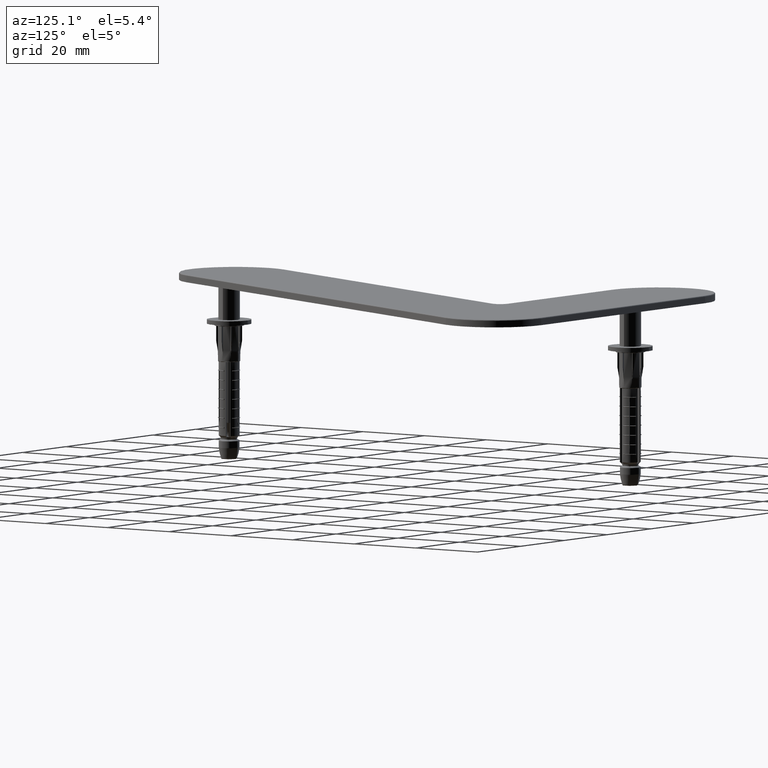
[diagram: clean part render]
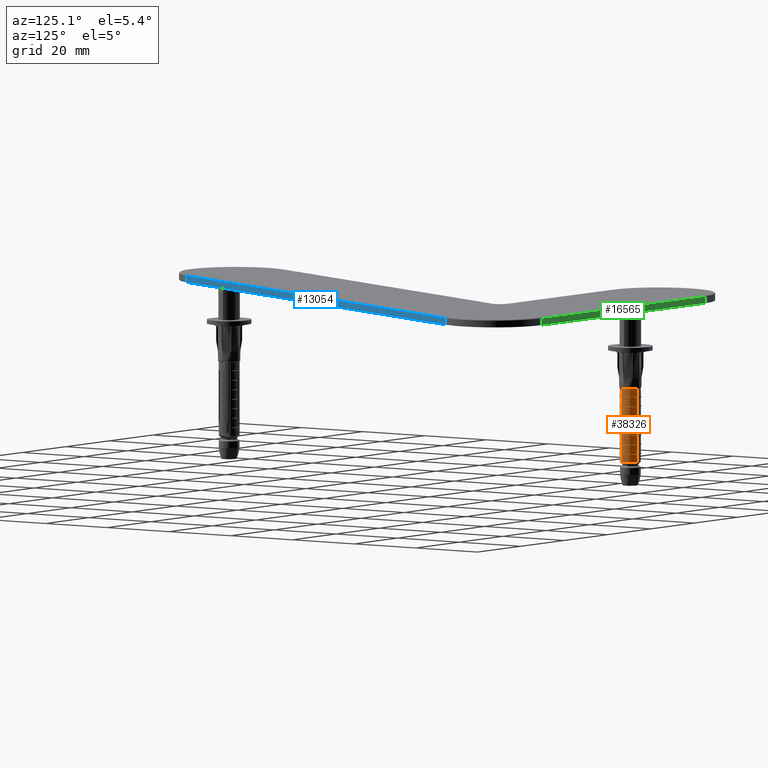
[diagram: same view with three faces highlighted in distinct colors, each labeled with its STEP entity id]
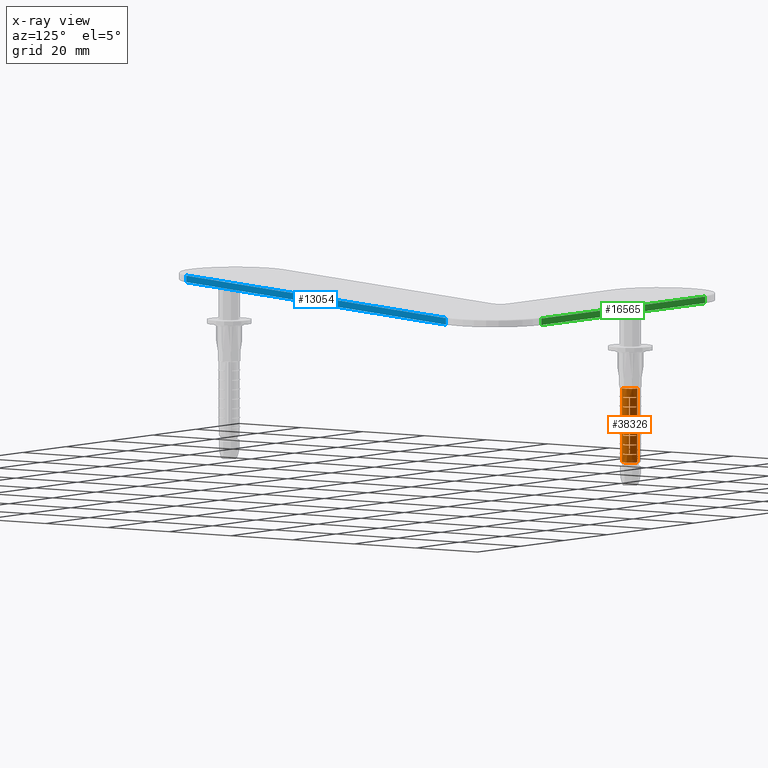
[diagram: x-ray of the same camera — body ghosted, the three highlighted faces saturated]
A machine part, auxiliary view with three faces highlighted in distinct colors.
The next image is the same camera in x-ray (body ghosted, the three faces saturated) — at least one of them is partly hidden behind the body in this view.
Their STEP definitions:

[orange] entity #38326 — the highlighted cylindrical surface (edge-blend (fillet) strip) has radius 2.8 mm, axis along (0, 0, -1).
#136 = VERTEX_POINT ( 'NONE', #16841 ) ;
#141 = EDGE_CURVE ( 'NONE', #7255, #7451, #30118, .T. ) ;
#160 = CIRCLE ( 'NONE', #3348, 2.799999999999999822 ) ;
#195 = VECTOR ( 'NONE', #12572, 1000.000000000000000 ) ;
#216 = ORIENTED_EDGE ( 'NONE', *, *, #22571, .T. ) ;
#256 = CARTESIAN_POINT ( 'NONE',  ( -2.767673818475161696, 0.4242424242424543968, -24.94999999999999574 ) ) ;
#286 = ORIENTED_EDGE ( 'NONE', *, *, #33170, .T. ) ;
#288 = AXIS2_PLACEMENT_3D ( 'NONE', #8149, #16817, #22623 ) ;
#295 = DIRECTION ( 'NONE',  ( -4.540655609425253692E-18, 4.182044590197414905E-18, 1.000000000000000000 ) ) ;
#296 = CARTESIAN_POINT ( 'NONE',  ( -2.361358431559908766, -1.504654896546356424, -26.31052289814725853 ) ) ;
#303 = ORIENTED_EDGE ( 'NONE', *, *, #32622, .F. ) ;
#325 = CARTESIAN_POINT ( 'NONE',  ( -2.483748580117769222, -1.292668940898234586, -19.89999999999999858 ) ) ;
#348 = CARTESIAN_POINT ( 'NONE',  ( -2.767673818475161251, 0.4242424242424545633, -14.84999999999999964 ) ) ;
#350 = VERTEX_POINT ( 'NONE', #15103 ) ;
#661 = LINE ( 'NONE', #14378, #13094 ) ;
#822 = VERTEX_POINT ( 'NONE', #33950 ) ;
#1017 = VERTEX_POINT ( 'NONE', #22760 ) ;
#1020 = AXIS2_PLACEMENT_3D ( 'NONE', #12392, #295, #33028 ) ;
#1114 = CARTESIAN_POINT ( 'NONE',  ( -1.016432192480564156, -2.608997048309782407, -17.57499999999999929 ) ) ;
#1123 = ORIENTED_EDGE ( 'NONE', *, *, #6158, .T. ) ;
#1279 = CARTESIAN_POINT ( 'NONE',  ( 9.126717774944759751E-17, -8.405909626296804174E-17, -20.10000000000000142 ) ) ;
#1312 = EDGE_CURVE ( 'NONE', #31857, #7255, #24956, .T. ) ;
#1321 = CARTESIAN_POINT ( 'NONE',  ( -2.361358431559909210, -1.504654896546356424, -36.00000000000000000 ) ) ;
#1371 = EDGE_CURVE ( 'NONE', #33463, #31158, #8334, .T. ) ;
#1391 = DIRECTION ( 'NONE',  ( -4.540655609425253692E-18, 4.182044590197414905E-18, 1.000000000000000000 ) ) ;
#1421 = EDGE_CURVE ( 'NONE', #35980, #27751, #4193, .T. ) ;
#1455 = CARTESIAN_POINT ( 'NONE',  ( -2.767673818475162140, 0.4242424242424547298, -12.52500000000000213 ) ) ;
#1526 = DIRECTION ( 'NONE',  ( 0.000000000000000000, 1.000000000000000000, 0.000000000000000000 ) ) ;
#1547 = DIRECTION ( 'NONE',  ( -4.540655609425253692E-18, 4.182044590197414905E-18, 1.000000000000000000 ) ) ;
#1599 = DIRECTION ( 'NONE',  ( 0.000000000000000000, 1.000000000000000000, 0.000000000000000000 ) ) ;
#1672 = CARTESIAN_POINT ( 'NONE',  ( 1.141974885770451016E-16, -1.051784214434649850E-16, -25.14999999999999858 ) ) ;
#1685 = VERTEX_POINT ( 'NONE', #12544 ) ;
#1803 = DIRECTION ( 'NONE',  ( 0.8660254037844433705, 0.4999999999999920064, 0.000000000000000000 ) ) ;
#1832 = ORIENTED_EDGE ( 'NONE', *, *, #18891, .F. ) ;
#1891 = CARTESIAN_POINT ( 'NONE',  ( 1.027323331632463865E-16, -9.461875885321650721E-17, -22.62500000000000000 ) ) ;
#1903 = DIRECTION ( 'NONE',  ( 0.8660254037844433705, 0.4999999999999920064, 0.000000000000000000 ) ) ;
#2010 = CARTESIAN_POINT ( 'NONE',  ( -2.483748580117769222, -1.292668940898235030, -36.00000000000000000 ) ) ;
#2023 = CARTESIAN_POINT ( 'NONE',  ( 1.141974885770451016E-16, -1.051784214434649850E-16, -25.14999999999999858 ) ) ;
#2071 = CARTESIAN_POINT ( 'NONE',  ( -1.016432192480563934, -2.608997048309781963, -36.00000000000000000 ) ) ;
#2140 = CARTESIAN_POINT ( 'NONE',  ( -2.463716330369619456, -1.330570181226455873, -27.37920234786883356 ) ) ;
#2192 = VERTEX_POINT ( 'NONE', #14188 ) ;
#2227 = EDGE_CURVE ( 'NONE', #18747, #21732, #15683, .T. ) ;
#2329 = LINE ( 'NONE', #21700, #34708 ) ;
#2365 = CARTESIAN_POINT ( 'NONE',  ( 1.247545128689588310E-16, -1.149016751156739262E-16, -27.47499999999999076 ) ) ;
#2415 = LINE ( 'NONE', #2010, #19025 ) ;
#2504 = AXIS2_PLACEMENT_3D ( 'NONE', #2365, #5332, #17199 ) ;
#2509 = ORIENTED_EDGE ( 'NONE', *, *, #26201, .T. ) ;
#2539 = CARTESIAN_POINT ( 'NONE',  ( -2.767673818475161696, 0.4242424242424544523, -19.89999999999999858 ) ) ;
#2652 = CARTESIAN_POINT ( 'NONE',  ( -2.474357888538981420, -1.310574868337798460, -27.08807541499556137 ) ) ;
#2683 = EDGE_CURVE ( 'NONE', #19490, #29996, #2329, .T. ) ;
#2768 = CARTESIAN_POINT ( 'NONE',  ( -1.016432192480563712, -2.608997048309781963, -22.42499999999999716 ) ) ;
#2830 = CIRCLE ( 'NONE', #15725, 2.799999999999999378 ) ;
#3107 = CIRCLE ( 'NONE', #19152, 2.799999999999999822 ) ;
#3295 = VECTOR ( 'NONE', #16843, 1000.000000000000000 ) ;
#3305 = EDGE_CURVE ( 'NONE', #5092, #27751, #36949, .T. ) ;
#3345 = CARTESIAN_POINT ( 'NONE',  ( -2.361358431559908322, -1.504654896546355980, -17.37499999999999645 ) ) ;
#3348 = AXIS2_PLACEMENT_3D ( 'NONE', #2023, #22272, #22526 ) ;
#3351 = VERTEX_POINT ( 'NONE', #32455 ) ;
#3363 = DIRECTION ( 'NONE',  ( -0.000000000000000000, -6.803593328596414068E-18, -1.000000000000000000 ) ) ;
#3419 = LINE ( 'NONE', #22262, #30181 ) ;
#3447 = CARTESIAN_POINT ( 'NONE',  ( -2.675350868333212340, 0.8261342090173534602, -10.09999999999999787 ) ) ;
#3528 = DIRECTION ( 'NONE',  ( 0.000000000000000000, 6.803593328596414068E-18, 1.000000000000000000 ) ) ;
#3630 = CIRCLE ( 'NONE', #25191, 2.799999999999999822 ) ;
#3638 = VERTEX_POINT ( 'NONE', #22398 ) ;
#3659 = ORIENTED_EDGE ( 'NONE', *, *, #28922, .T. ) ;
#3885 = LINE ( 'NONE', #2071, #36679 ) ;
#4108 = CARTESIAN_POINT ( 'NONE',  ( -2.483748580117768778, -1.292668940898234364, -15.05000000000000071 ) ) ;
#4145 = VERTEX_POINT ( 'NONE', #9425 ) ;
#4193 = CIRCLE ( 'NONE', #34933, 2.799999999999999822 ) ;
#4348 = DIRECTION ( 'NONE',  ( -0.000000000000000000, -6.803593328596414068E-18, -1.000000000000000000 ) ) ;
#4417 = AXIS2_PLACEMENT_3D ( 'NONE', #11777, #20800, #15241 ) ;
#4429 = EDGE_LOOP ( 'NONE', ( #10481, #19375, #16707, #8200, #23025, #8001, #17833, #31484, #23367, #20803, #24278, #36409, #15994, #12258, #9257, #1123, #27509, #9440, #18684, #216, #12217, #22591, #29913, #2509, #23248, #303, #18350, #33267, #286, #5323, #31209, #16794, #5433, #23401, #1832, #8753, #31987, #11099, #33764, #24862, #18267, #19917, #22159, #35330, #36697, #25874, #21053, #21939, #19334, #10569, #28159, #9858, #16103, #3659, #35687 ) ) ;
#4468 = VERTEX_POINT ( 'NONE', #20112 ) ;
#4485 = DIRECTION ( 'NONE',  ( -4.540655609425253692E-18, 4.182044590197414905E-18, 1.000000000000000000 ) ) ;
#4556 = DIRECTION ( 'NONE',  ( -4.540655609425253692E-18, 4.182044590197414905E-18, 1.000000000000000000 ) ) ;
#4573 = CIRCLE ( 'NONE', #13282, 2.799999999999999822 ) ;
#4779 = CARTESIAN_POINT ( 'NONE',  ( -2.460687915453515728, -1.336044528726880731, -22.62500000000000000 ) ) ;
#4829 = CARTESIAN_POINT ( 'NONE',  ( -2.483748580117768778, -1.292668940898234364, -17.37499999999999645 ) ) ;
#4858 = CARTESIAN_POINT ( 'NONE',  ( -1.016432192480563934, -2.608997048309782407, -12.52500000000000213 ) ) ;
#4972 = CARTESIAN_POINT ( 'NONE',  ( -2.483748580117768778, -1.292668940898234364, -17.57499999999999929 ) ) ;
#5015 = CARTESIAN_POINT ( 'NONE',  ( 6.833686692185005643E-17, -6.293977108247109848E-17, -15.05000000000000071 ) ) ;
#5016 = DIRECTION ( 'NONE',  ( -0.000000000000000000, -6.803593328596414068E-18, -1.000000000000000000 ) ) ;
#5069 = LINE ( 'NONE', #19117, #16114 ) ;
#5092 = VERTEX_POINT ( 'NONE', #27634 ) ;
#5323 = ORIENTED_EDGE ( 'NONE', *, *, #8606, .F. ) ;
#5332 = DIRECTION ( 'NONE',  ( -4.540655609425253692E-18, 4.182044590197414905E-18, 1.000000000000000000 ) ) ;
#5433 = ORIENTED_EDGE ( 'NONE', *, *, #21146, .T. ) ;
#5715 = DIRECTION ( 'NONE',  ( 0.000000000000000000, 6.803593328596414068E-18, 1.000000000000000000 ) ) ;
#5803 = CIRCLE ( 'NONE', #6740, 2.799999999999999822 ) ;
#5808 = EDGE_CURVE ( 'NONE', #3351, #11420, #15838, .T. ) ;
#5823 = VECTOR ( 'NONE', #30395, 1000.000000000000000 ) ;
#5826 = DIRECTION ( 'NONE',  ( -0.000000000000000000, -6.803593328596414068E-18, -1.000000000000000000 ) ) ;
#5853 = EDGE_CURVE ( 'NONE', #11420, #2192, #29780, .T. ) ;
#5921 = B_SPLINE_CURVE_WITH_KNOTS ( 'NONE', 3,
 ( #296, #9169, #5989, #6365, #23758, #6122, #20918, #11888 ),
 .UNSPECIFIED., .F., .F.,
 ( 4, 2, 2, 4 ),
 ( 0.000000000000000000, 0.0005836036533015558948, 0.0008754054799523338423, 0.001167207306603111790 ),
 .UNSPECIFIED. ) ;
#5989 = CARTESIAN_POINT ( 'NONE',  ( -2.363096400378637441, -1.501944770892664760, -26.69959461916634424 ) ) ;
#5993 = DIRECTION ( 'NONE',  ( 0.8660254037844433705, 0.4999999999999920064, 0.000000000000000000 ) ) ;
#5999 = CARTESIAN_POINT ( 'NONE',  ( -2.361358431559908766, -1.504654896546356424, -24.94999999999999574 ) ) ;
#6035 = EDGE_CURVE ( 'NONE', #12896, #24230, #5921, .T. ) ;
#6061 = EDGE_CURVE ( 'NONE', #29870, #31857, #34433, .T. ) ;
#6122 = CARTESIAN_POINT ( 'NONE',  ( -2.379905641839956676, -1.475161883330798451, -27.28203077829503442 ) ) ;
#6158 = EDGE_CURVE ( 'NONE', #20149, #4145, #32111, .T. ) ;
#6365 = CARTESIAN_POINT ( 'NONE',  ( -2.369438809451833272, -1.491903281495504885, -26.99099585964414771 ) ) ;
#6525 = CIRCLE ( 'NONE', #29148, 2.799999999999999378 ) ;
#6740 = AXIS2_PLACEMENT_3D ( 'NONE', #31737, #14092, #20306 ) ;
#6815 = EDGE_CURVE ( 'NONE', #16617, #11805, #33012, .T. ) ;
#6905 = CARTESIAN_POINT ( 'NONE',  ( -1.016432192480563934, -2.608997048309782407, -22.62500000000000000 ) ) ;
#7033 = LINE ( 'NONE', #32226, #19027 ) ;
#7214 = ORIENTED_EDGE ( 'NONE', *, *, #10857, .T. ) ;
#7255 = VERTEX_POINT ( 'NONE', #38158 ) ;
#7451 = VERTEX_POINT ( 'NONE', #22214 ) ;
#7633 = EDGE_CURVE ( 'NONE', #31343, #32436, #7033, .T. ) ;
#7832 = CARTESIAN_POINT ( 'NONE',  ( -2.767673818475161251, 0.4242424242424545633, -12.32500000000000107 ) ) ;
#8001 = ORIENTED_EDGE ( 'NONE', *, *, #6061, .T. ) ;
#8025 = CARTESIAN_POINT ( 'NONE',  ( -2.393379353113320729, -1.453181087163902374, -27.47499999999999076 ) ) ;
#8026 = EDGE_CURVE ( 'NONE', #18283, #32731, #36142, .T. ) ;
#8149 = CARTESIAN_POINT ( 'NONE',  ( 7.889389121376377345E-17, -7.266302475468007665E-17, -17.37499999999999645 ) ) ;
#8200 = ORIENTED_EDGE ( 'NONE', *, *, #37260, .T. ) ;
#8220 = CARTESIAN_POINT ( 'NONE',  ( -1.016432192480563490, -2.608997048309781519, -24.94999999999999574 ) ) ;
#8334 = LINE ( 'NONE', #20150, #24510 ) ;
#8372 = EDGE_CURVE ( 'NONE', #4145, #350, #26422, .T. ) ;
#8443 = DIRECTION ( 'NONE',  ( 0.000000000000000000, 6.803593328596414068E-18, 1.000000000000000000 ) ) ;
#8551 = CARTESIAN_POINT ( 'NONE',  ( -2.483748580118025018, -1.292668940897744312, -26.50506116889642172 ) ) ;
#8566 = AXIS2_PLACEMENT_3D ( 'NONE', #24605, #1391, #31011 ) ;
#8606 = EDGE_CURVE ( 'NONE', #33463, #29010, #2830, .T. ) ;
#8650 = CIRCLE ( 'NONE', #23997, 2.799999999999999822 ) ;
#8682 = CARTESIAN_POINT ( 'NONE',  ( -2.467480486578948362, -1.323477802777908829, -27.28203077829557088 ) ) ;
#8753 = ORIENTED_EDGE ( 'NONE', *, *, #5808, .T. ) ;
#8957 = VERTEX_POINT ( 'NONE', #2768 ) ;
#8965 = AXIS2_PLACEMENT_3D ( 'NONE', #10578, #13526, #34276 ) ;
#8972 = CARTESIAN_POINT ( 'NONE',  ( 1.247545128689588310E-16, -1.149016751156739262E-16, -27.47499999999999076 ) ) ;
#9036 = CARTESIAN_POINT ( 'NONE',  ( -2.767673818475162140, 0.4242424242424543412, -36.00000000000000000 ) ) ;
#9130 = CARTESIAN_POINT ( 'NONE',  ( -2.767673818475162140, 0.4242424242424544523, -36.00000000000000000 ) ) ;
#9169 = CARTESIAN_POINT ( 'NONE',  ( -2.361358431559801296, -1.504654896546524068, -26.50506116889412667 ) ) ;
#9257 = ORIENTED_EDGE ( 'NONE', *, *, #23848, .T. ) ;
#9265 = CARTESIAN_POINT ( 'NONE',  ( -2.483748580117769222, -1.292668940898235030, -36.00000000000000000 ) ) ;
#9363 = CARTESIAN_POINT ( 'NONE',  ( 1.132893574551600419E-16, -1.043420125254254854E-16, -24.94999999999999574 ) ) ;
#9425 = CARTESIAN_POINT ( 'NONE',  ( -2.483748580117769222, -1.292668940898234808, -22.42499999999999716 ) ) ;
#9440 = ORIENTED_EDGE ( 'NONE', *, *, #28489, .F. ) ;
#9591 = CIRCLE ( 'NONE', #4417, 2.799999999999999378 ) ;
#9844 = EDGE_CURVE ( 'NONE', #8957, #30184, #5069, .T. ) ;
#9858 = ORIENTED_EDGE ( 'NONE', *, *, #34058, .T. ) ;
#10018 = CARTESIAN_POINT ( 'NONE',  ( -2.767673818475162140, 0.4242424242424544523, -22.62500000000000000 ) ) ;
#10075 = DIRECTION ( 'NONE',  ( 0.8660254037844433705, 0.4999999999999920064, 0.000000000000000000 ) ) ;
#10151 = CARTESIAN_POINT ( 'NONE',  ( -2.767673818475162140, 0.4242424242424543412, -27.67499999999999361 ) ) ;
#10207 = CARTESIAN_POINT ( 'NONE',  ( 1.018242020413613022E-16, -9.378234993517700759E-17, -22.42499999999999716 ) ) ;
#10454 = CARTESIAN_POINT ( 'NONE',  ( 6.833686692185005643E-17, -6.293977108247109848E-17, -15.05000000000000071 ) ) ;
#10456 = DIRECTION ( 'NONE',  ( -0.000000000000000000, -6.803593328596414068E-18, -1.000000000000000000 ) ) ;
#10481 = ORIENTED_EDGE ( 'NONE', *, *, #14261, .T. ) ;
#10569 = ORIENTED_EDGE ( 'NONE', *, *, #9844, .T. ) ;
#10578 = CARTESIAN_POINT ( 'NONE',  ( 7.889389121376377345E-17, -7.266302475468007665E-17, -17.37499999999999645 ) ) ;
#10616 = CIRCLE ( 'NONE', #23888, 2.799999999999999822 ) ;
#10765 = DIRECTION ( 'NONE',  ( 0.8660254037844433705, 0.4999999999999920064, 0.000000000000000000 ) ) ;
#10826 = CARTESIAN_POINT ( 'NONE',  ( -2.361358431559909210, -1.504654896546356424, -36.00000000000000000 ) ) ;
#10857 = EDGE_CURVE ( 'NONE', #32436, #3638, #4573, .T. ) ;
#10869 = CARTESIAN_POINT ( 'NONE',  ( -2.361358431559908322, -1.504654896546355980, -14.84999999999999964 ) ) ;
#10989 = DIRECTION ( 'NONE',  ( -4.540655609425253692E-18, 4.182044590197414905E-18, 1.000000000000000000 ) ) ;
#11099 = ORIENTED_EDGE ( 'NONE', *, *, #15892, .T. ) ;
#11166 = CARTESIAN_POINT ( 'NONE',  ( -2.361358431559908322, -1.504654896546355980, -17.57499999999999929 ) ) ;
#11234 = AXIS2_PLACEMENT_3D ( 'NONE', #10207, #19113, #10075 ) ;
#11420 = VERTEX_POINT ( 'NONE', #10869 ) ;
#11508 = DIRECTION ( 'NONE',  ( -4.540655609425253692E-18, 4.182044590197414905E-18, 1.000000000000000000 ) ) ;
#11574 = CARTESIAN_POINT ( 'NONE',  ( -1.016432192480564156, -2.608997048309781963, -36.00000000000000000 ) ) ;
#11603 = LINE ( 'NONE', #9130, #34318 ) ;
#11761 = DIRECTION ( 'NONE',  ( 0.000000000000000000, 6.803593328596414068E-18, 1.000000000000000000 ) ) ;
#11777 = CARTESIAN_POINT ( 'NONE',  ( 7.980202233564885778E-17, -7.349943367271956395E-17, -17.57499999999999929 ) ) ;
#11780 = CARTESIAN_POINT ( 'NONE',  ( -2.476745546490385141, -1.306042560950300802, -26.99099585964534498 ) ) ;
#11805 = VERTEX_POINT ( 'NONE', #4972 ) ;
#11810 = DIRECTION ( 'NONE',  ( -4.540655609425253692E-18, 4.182044590197414905E-18, 1.000000000000000000 ) ) ;
#11814 = VECTOR ( 'NONE', #27819, 1000.000000000000000 ) ;
#11846 = CARTESIAN_POINT ( 'NONE',  ( -1.016432192480563712, -2.608997048309782407, -36.00000000000000000 ) ) ;
#11888 = CARTESIAN_POINT ( 'NONE',  ( -2.393379353113320729, -1.453181087163902374, -27.47499999999999076 ) ) ;
#12099 = CARTESIAN_POINT ( 'NONE',  ( -2.767673818475161251, 0.4242424242424545078, -17.37499999999999645 ) ) ;
#12177 = VERTEX_POINT ( 'NONE', #13388 ) ;
#12214 = DIRECTION ( 'NONE',  ( 0.8660254037844433705, 0.4999999999999920064, 0.000000000000000000 ) ) ;
#12217 = ORIENTED_EDGE ( 'NONE', *, *, #6815, .T. ) ;
#12258 = ORIENTED_EDGE ( 'NONE', *, *, #13951, .F. ) ;
#12392 = CARTESIAN_POINT ( 'NONE',  ( 5.596358038616625703E-17, -5.154369957418313338E-17, -12.32500000000000107 ) ) ;
#12416 = VECTOR ( 'NONE', #3363, 1000.000000000000000 ) ;
#12544 = CARTESIAN_POINT ( 'NONE',  ( -2.361358431559908766, -1.504654896546356424, -22.62500000000000000 ) ) ;
#12565 = VECTOR ( 'NONE', #33581, 1000.000000000000000 ) ;
#12572 = DIRECTION ( 'NONE',  ( -0.000000000000000000, -6.803593328596414068E-18, -1.000000000000000000 ) ) ;
#12671 = CARTESIAN_POINT ( 'NONE',  ( -2.361358431559909210, -1.504654896546356424, -36.00000000000000000 ) ) ;
#12842 = VERTEX_POINT ( 'NONE', #13917 ) ;
#12896 = VERTEX_POINT ( 'NONE', #26199 ) ;
#13052 = LINE ( 'NONE', #10826, #14926 ) ;
#13094 = VECTOR ( 'NONE', #8443, 1000.000000000000000 ) ;
#13282 = AXIS2_PLACEMENT_3D ( 'NONE', #36981, #19261, #1599 ) ;
#13301 = CARTESIAN_POINT ( 'NONE',  ( 6.742873579996503373E-17, -6.210336216443161118E-17, -14.84999999999999964 ) ) ;
#13388 = CARTESIAN_POINT ( 'NONE',  ( -2.483748580117769222, -1.292668940898234808, -25.14999999999999858 ) ) ;
#13402 = LINE ( 'NONE', #19338, #33844 ) ;
#13437 = AXIS2_PLACEMENT_3D ( 'NONE', #5015, #1547, #22171 ) ;
#13526 = DIRECTION ( 'NONE',  ( -4.540655609425253692E-18, 4.182044590197414905E-18, 1.000000000000000000 ) ) ;
#13548 = DIRECTION ( 'NONE',  ( 0.8660254037844433705, 0.4999999999999920064, 0.000000000000000000 ) ) ;
#13633 = DIRECTION ( 'NONE',  ( -4.540655609425253692E-18, 4.182044590197414905E-18, 1.000000000000000000 ) ) ;
#13661 = CARTESIAN_POINT ( 'NONE',  ( -1.016432192480564156, -2.608997048309782407, -15.05000000000000071 ) ) ;
#13854 = CARTESIAN_POINT ( 'NONE',  ( -2.361358431559909210, -1.504654896546356424, -36.00000000000000000 ) ) ;
#13917 = CARTESIAN_POINT ( 'NONE',  ( -2.767673818475162140, 0.4242424242424544523, -25.14999999999999858 ) ) ;
#13951 = EDGE_CURVE ( 'NONE', #29790, #24728, #8650, .T. ) ;
#14092 = DIRECTION ( 'NONE',  ( -4.540655609425253692E-18, 4.182044590197414905E-18, 1.000000000000000000 ) ) ;
#14188 = CARTESIAN_POINT ( 'NONE',  ( -1.016432192480563712, -2.608997048309781519, -14.84999999999999964 ) ) ;
#14261 = EDGE_CURVE ( 'NONE', #21033, #12896, #14635, .T. ) ;
#14264 = CIRCLE ( 'NONE', #32081, 2.799999999999999378 ) ;
#14301 = AXIS2_PLACEMENT_3D ( 'NONE', #21423, #30378, #21293 ) ;
#14374 = VECTOR ( 'NONE', #18327, 1000.000000000000000 ) ;
#14378 = CARTESIAN_POINT ( 'NONE',  ( -0.6222222222222226762, -2.729988920521994267, -36.00000000000000000 ) ) ;
#14564 = CARTESIAN_POINT ( 'NONE',  ( -1.016432192480563712, -2.608997048309782407, -36.00000000000000000 ) ) ;
#14635 = LINE ( 'NONE', #12671, #24776 ) ;
#14671 = VECTOR ( 'NONE', #21953, 1000.000000000000000 ) ;
#14844 = CARTESIAN_POINT ( 'NONE',  ( -0.6222222222222225652, -2.729988920521993823, -10.09999999999999787 ) ) ;
#14926 = VECTOR ( 'NONE', #25276, 1000.000000000000000 ) ;
#15028 = DIRECTION ( 'NONE',  ( -4.540655609425253692E-18, 4.182044590197414905E-18, 1.000000000000000000 ) ) ;
#15102 = VERTEX_POINT ( 'NONE', #17122 ) ;
#15103 = CARTESIAN_POINT ( 'NONE',  ( -2.483748580117769222, -1.292668940898234808, -20.10000000000000142 ) ) ;
#15241 = DIRECTION ( 'NONE',  ( 0.8660254037844433705, 0.4999999999999920064, 0.000000000000000000 ) ) ;
#15310 = CARTESIAN_POINT ( 'NONE',  ( -2.361358431559908766, -1.504654896546356424, -20.10000000000000142 ) ) ;
#15403 = CARTESIAN_POINT ( 'NONE',  ( -2.361358431559909210, -1.504654896546356424, -36.00000000000000000 ) ) ;
#15505 = EDGE_CURVE ( 'NONE', #19503, #23394, #14264, .T. ) ;
#15683 = LINE ( 'NONE', #33616, #24477 ) ;
#15725 = AXIS2_PLACEMENT_3D ( 'NONE', #37271, #19675, #10765 ) ;
#15813 = CARTESIAN_POINT ( 'NONE',  ( 1.018242020413613022E-16, -9.378234993517700759E-17, -22.42499999999999716 ) ) ;
#15838 = LINE ( 'NONE', #15403, #195 ) ;
#15873 = EDGE_CURVE ( 'NONE', #26266, #19852, #13052, .T. ) ;
#15892 = EDGE_CURVE ( 'NONE', #2192, #32216, #3885, .T. ) ;
#15994 = ORIENTED_EDGE ( 'NONE', *, *, #16974, .F. ) ;
#16021 = DIRECTION ( 'NONE',  ( 0.8660254037844433705, 0.4999999999999920064, 0.000000000000000000 ) ) ;
#16103 = ORIENTED_EDGE ( 'NONE', *, *, #8026, .T. ) ;
#16114 = VECTOR ( 'NONE', #10456, 1000.000000000000000 ) ;
#16189 = DIRECTION ( 'NONE',  ( -5.892084659582852829E-18, -1.020538999289456486E-17, -1.000000000000000000 ) ) ;
#16200 = DIRECTION ( 'NONE',  ( -4.540655609425253692E-18, 4.182044590197414905E-18, 1.000000000000000000 ) ) ;
#16408 = VERTEX_POINT ( 'NONE', #32288 ) ;
#16617 = VERTEX_POINT ( 'NONE', #325 ) ;
#16707 = ORIENTED_EDGE ( 'NONE', *, *, #25274, .T. ) ;
#16794 = ORIENTED_EDGE ( 'NONE', *, *, #24424, .T. ) ;
#16817 = DIRECTION ( 'NONE',  ( -4.540655609425253692E-18, 4.182044590197414905E-18, 1.000000000000000000 ) ) ;
#16841 = CARTESIAN_POINT ( 'NONE',  ( -1.016432192480563712, -2.608997048309781963, -25.14999999999999858 ) ) ;
#16843 = DIRECTION ( 'NONE',  ( -0.000000000000000000, -6.803593328596414068E-18, -1.000000000000000000 ) ) ;
#16852 = CARTESIAN_POINT ( 'NONE',  ( -2.767673818475162140, 0.4242424242424545078, -20.10000000000000142 ) ) ;
#16864 = EDGE_CURVE ( 'NONE', #21033, #136, #160, .T. ) ;
#16968 = EDGE_CURVE ( 'NONE', #1685, #30184, #19992, .T. ) ;
#16974 = EDGE_CURVE ( 'NONE', #24728, #15102, #3419, .T. ) ;
#17122 = CARTESIAN_POINT ( 'NONE',  ( -2.460687915453515284, -1.336044528726880287, -24.94999999999999574 ) ) ;
#17127 = DIRECTION ( 'NONE',  ( 0.8660254037844433705, 0.4999999999999920064, 0.000000000000000000 ) ) ;
#17199 = DIRECTION ( 'NONE',  ( 0.8660254037844433705, 0.4999999999999920064, 0.000000000000000000 ) ) ;
#17472 = CARTESIAN_POINT ( 'NONE',  ( 5.687171150805130437E-17, -5.238010849222262684E-17, -12.52500000000000213 ) ) ;
#17496 = EDGE_CURVE ( 'NONE', #7451, #12177, #18197, .T. ) ;
#17691 = CARTESIAN_POINT ( 'NONE',  ( -2.361358431559908766, -1.504654896546356424, -25.14999999999999858 ) ) ;
#17829 = EDGE_CURVE ( 'NONE', #12842, #12177, #28800, .T. ) ;
#17833 = ORIENTED_EDGE ( 'NONE', *, *, #1312, .T. ) ;
#17852 = DIRECTION ( 'NONE',  ( 0.000000000000000000, 6.803593328596414068E-18, 1.000000000000000000 ) ) ;
#17895 = LINE ( 'NONE', #23036, #34568 ) ;
#18007 = VECTOR ( 'NONE', #4348, 1000.000000000000000 ) ;
#18197 = LINE ( 'NONE', #27463, #12565 ) ;
#18267 = ORIENTED_EDGE ( 'NONE', *, *, #24159, .T. ) ;
#18280 = EDGE_CURVE ( 'NONE', #29196, #31343, #36189, .T. ) ;
#18283 = VERTEX_POINT ( 'NONE', #5999 ) ;
#18327 = DIRECTION ( 'NONE',  ( 0.000000000000000000, 6.803593328596414068E-18, 1.000000000000000000 ) ) ;
#18350 = ORIENTED_EDGE ( 'NONE', *, *, #29357, .T. ) ;
#18659 = VECTOR ( 'NONE', #11761, 1000.000000000000000 ) ;
#18684 = ORIENTED_EDGE ( 'NONE', *, *, #2683, .T. ) ;
#18747 = VERTEX_POINT ( 'NONE', #4829 ) ;
#18766 = DIRECTION ( 'NONE',  ( -4.540655609425253692E-18, 4.182044590197414905E-18, 1.000000000000000000 ) ) ;
#18891 = EDGE_CURVE ( 'NONE', #3351, #19426, #27870, .T. ) ;
#18999 = CARTESIAN_POINT ( 'NONE',  ( -2.767673818475161696, 0.4242424242424542857, -27.47499999999999076 ) ) ;
#19025 = VECTOR ( 'NONE', #23136, 1000.000000000000000 ) ;
#19027 = VECTOR ( 'NONE', #23235, 1000.000000000000000 ) ;
#19079 = CARTESIAN_POINT ( 'NONE',  ( -1.016432192480563934, -2.608997048309781963, -36.00000000000000000 ) ) ;
#19113 = DIRECTION ( 'NONE',  ( -4.540655609425253692E-18, 4.182044590197414905E-18, 1.000000000000000000 ) ) ;
#19117 = CARTESIAN_POINT ( 'NONE',  ( -1.016432192480563712, -2.608997048309782407, -36.00000000000000000 ) ) ;
#19152 = AXIS2_PLACEMENT_3D ( 'NONE', #31915, #34858, #17127 ) ;
#19240 = AXIS2_PLACEMENT_3D ( 'NONE', #15813, #27365, #33362 ) ;
#19261 = DIRECTION ( 'NONE',  ( 0.000000000000000000, 6.803593328596413297E-18, 1.000000000000000000 ) ) ;
#19334 = ORIENTED_EDGE ( 'NONE', *, *, #36011, .T. ) ;
#19338 = CARTESIAN_POINT ( 'NONE',  ( -2.361358431559909210, -1.504654896546356424, -36.00000000000000000 ) ) ;
#19362 = DIRECTION ( 'NONE',  ( 0.8660254037844433705, 0.4999999999999920064, 0.000000000000000000 ) ) ;
#19375 = ORIENTED_EDGE ( 'NONE', *, *, #6035, .T. ) ;
#19394 = EDGE_CURVE ( 'NONE', #27445, #5092, #27824, .T. ) ;
#19426 = VERTEX_POINT ( 'NONE', #4858 ) ;
#19447 = DIRECTION ( 'NONE',  ( -0.000000000000000000, -6.803593328596413297E-18, -1.000000000000000000 ) ) ;
#19490 = VERTEX_POINT ( 'NONE', #16852 ) ;
#19503 = VERTEX_POINT ( 'NONE', #11166 ) ;
#19675 = DIRECTION ( 'NONE',  ( -4.540655609425253692E-18, 4.182044590197414905E-18, 1.000000000000000000 ) ) ;
#19691 = LINE ( 'NONE', #33677, #11814 ) ;
#19786 = CARTESIAN_POINT ( 'NONE',  ( -2.483748580117768778, -1.292668940898234364, -12.52500000000000213 ) ) ;
#19852 = VERTEX_POINT ( 'NONE', #3345 ) ;
#19917 = ORIENTED_EDGE ( 'NONE', *, *, #21826, .T. ) ;
#19992 = CIRCLE ( 'NONE', #21863, 2.799999999999999822 ) ;
#20063 = CIRCLE ( 'NONE', #14301, 2.799999999999999378 ) ;
#20112 = CARTESIAN_POINT ( 'NONE',  ( -2.424871130596440771, -1.399999999999977263, -12.32500000000000107 ) ) ;
#20149 = VERTEX_POINT ( 'NONE', #25362 ) ;
#20150 = CARTESIAN_POINT ( 'NONE',  ( -2.767673818475162140, 0.4242424242424546743, -36.00000000000000000 ) ) ;
#20306 = DIRECTION ( 'NONE',  ( 0.8660254037844433705, 0.4999999999999920064, 0.000000000000000000 ) ) ;
#20671 = CARTESIAN_POINT ( 'NONE',  ( -2.767673818475162140, 0.4242424242424546188, -36.00000000000000000 ) ) ;
#20678 = LINE ( 'NONE', #14564, #12416 ) ;
#20712 = CIRCLE ( 'NONE', #19240, 2.799999999999999822 ) ;
#20797 = EDGE_CURVE ( 'NONE', #26266, #32216, #6525, .T. ) ;
#20800 = DIRECTION ( 'NONE',  ( -4.540655609425253692E-18, 4.182044590197414905E-18, 1.000000000000000000 ) ) ;
#20803 = ORIENTED_EDGE ( 'NONE', *, *, #17829, .F. ) ;
#20918 = CARTESIAN_POINT ( 'NONE',  ( -2.384165743643222424, -1.468355839208442148, -27.37920234786985674 ) ) ;
#21029 = EDGE_CURVE ( 'NONE', #26327, #15102, #10616, .T. ) ;
#21033 = VERTEX_POINT ( 'NONE', #17691 ) ;
#21053 = ORIENTED_EDGE ( 'NONE', *, *, #1421, .F. ) ;
#21089 = VERTEX_POINT ( 'NONE', #35910 ) ;
#21092 = CIRCLE ( 'NONE', #288, 2.799999999999999378 ) ;
#21146 = EDGE_CURVE ( 'NONE', #4468, #1017, #24933, .T. ) ;
#21293 = DIRECTION ( 'NONE',  ( 0.8660254037844433705, 0.4999999999999920064, 0.000000000000000000 ) ) ;
#21423 = CARTESIAN_POINT ( 'NONE',  ( 6.742873579996503373E-17, -6.210336216443161118E-17, -14.84999999999999964 ) ) ;
#21430 = CARTESIAN_POINT ( 'NONE',  ( -2.675350868333212340, 0.8261342090173533492, -29.74999999999999645 ) ) ;
#21700 = CARTESIAN_POINT ( 'NONE',  ( -2.767673818475162140, 0.4242424242424544523, -36.00000000000000000 ) ) ;
#21732 = VERTEX_POINT ( 'NONE', #4108 ) ;
#21824 = VECTOR ( 'NONE', #30104, 1000.000000000000000 ) ;
#21826 = EDGE_CURVE ( 'NONE', #23924, #23394, #37445, .T. ) ;
#21855 = AXIS2_PLACEMENT_3D ( 'NONE', #13301, #18766, #16021 ) ;
#21863 = AXIS2_PLACEMENT_3D ( 'NONE', #1891, #31504, #37410 ) ;
#21939 = ORIENTED_EDGE ( 'NONE', *, *, #22511, .T. ) ;
#21953 = DIRECTION ( 'NONE',  ( -0.000000000000000000, -6.803593328596414068E-18, -1.000000000000000000 ) ) ;
#22082 = LINE ( 'NONE', #1321, #14671 ) ;
#22159 = ORIENTED_EDGE ( 'NONE', *, *, #15505, .F. ) ;
#22171 = DIRECTION ( 'NONE',  ( 0.8660254037844433705, 0.4999999999999920064, 0.000000000000000000 ) ) ;
#22214 = CARTESIAN_POINT ( 'NONE',  ( -2.483748580117769222, -1.292668940898234808, -26.31052289814997636 ) ) ;
#22262 = CARTESIAN_POINT ( 'NONE',  ( -2.460687915453515284, -1.336044528726880731, -27.57499999999999574 ) ) ;
#22272 = DIRECTION ( 'NONE',  ( -4.540655609425253692E-18, 4.182044590197414905E-18, 1.000000000000000000 ) ) ;
#22348 = DIRECTION ( 'NONE',  ( -4.540655609425253692E-18, 4.182044590197414905E-18, 1.000000000000000000 ) ) ;
#22398 = CARTESIAN_POINT ( 'NONE',  ( -0.6222222222222225652, -2.729988920521993379, -29.74999999999999645 ) ) ;
#22511 = EDGE_CURVE ( 'NONE', #35980, #35288, #22082, .T. ) ;
#22526 = DIRECTION ( 'NONE',  ( 0.8660254037844433705, 0.4999999999999920064, 0.000000000000000000 ) ) ;
#22571 = EDGE_CURVE ( 'NONE', #29996, #16617, #3630, .T. ) ;
#22591 = ORIENTED_EDGE ( 'NONE', *, *, #36838, .F. ) ;
#22623 = DIRECTION ( 'NONE',  ( 0.8660254037844433705, 0.4999999999999920064, 0.000000000000000000 ) ) ;
#22760 = CARTESIAN_POINT ( 'NONE',  ( -1.016432192480563490, -2.608997048309781519, -12.32500000000000107 ) ) ;
#22848 = DIRECTION ( 'NONE',  ( 0.8660254037844433705, 0.4999999999999920064, 0.000000000000000000 ) ) ;
#23025 = ORIENTED_EDGE ( 'NONE', *, *, #25718, .F. ) ;
#23036 = CARTESIAN_POINT ( 'NONE',  ( -2.767673818475162140, 0.4242424242424543968, -36.00000000000000000 ) ) ;
#23132 = CARTESIAN_POINT ( 'NONE',  ( 0.000000000000000000, -6.871629261882377608E-17, -10.09999999999999787 ) ) ;
#23136 = DIRECTION ( 'NONE',  ( 0.000000000000000000, 6.803593328596414068E-18, 1.000000000000000000 ) ) ;
#23235 = DIRECTION ( 'NONE',  ( -0.000000000000000000, -6.803593328596414068E-18, -1.000000000000000000 ) ) ;
#23248 = ORIENTED_EDGE ( 'NONE', *, *, #2227, .T. ) ;
#23312 = VECTOR ( 'NONE', #17852, 1000.000000000000000 ) ;
#23337 = LINE ( 'NONE', #35439, #5823 ) ;
#23367 = ORIENTED_EDGE ( 'NONE', *, *, #17496, .T. ) ;
#23394 = VERTEX_POINT ( 'NONE', #1114 ) ;
#23401 = ORIENTED_EDGE ( 'NONE', *, *, #38053, .T. ) ;
#23758 = CARTESIAN_POINT ( 'NONE',  ( -2.372170073811461055, -1.487569355360297108, -27.08807541499458083 ) ) ;
#23848 = EDGE_CURVE ( 'NONE', #29790, #20149, #17895, .T. ) ;
#23888 = AXIS2_PLACEMENT_3D ( 'NONE', #29472, #4556, #32605 ) ;
#23924 = VERTEX_POINT ( 'NONE', #35485 ) ;
#23997 = AXIS2_PLACEMENT_3D ( 'NONE', #26706, #35650, #12214 ) ;
#24116 = AXIS2_PLACEMENT_3D ( 'NONE', #9363, #15028, #29937 ) ;
#24159 = EDGE_CURVE ( 'NONE', #19852, #23924, #21092, .T. ) ;
#24230 = VERTEX_POINT ( 'NONE', #8025 ) ;
#24278 = ORIENTED_EDGE ( 'NONE', *, *, #33886, .T. ) ;
#24424 = EDGE_CURVE ( 'NONE', #31158, #4468, #30383, .T. ) ;
#24477 = VECTOR ( 'NONE', #36416, 1000.000000000000000 ) ;
#24510 = VECTOR ( 'NONE', #29092, 1000.000000000000000 ) ;
#24605 = CARTESIAN_POINT ( 'NONE',  ( 5.596358038616625703E-17, -5.154369957418313338E-17, -12.32500000000000107 ) ) ;
#24728 = VERTEX_POINT ( 'NONE', #4779 ) ;
#24758 = CARTESIAN_POINT ( 'NONE',  ( -2.767673818475162140, 0.4242424242424546743, -17.57499999999999929 ) ) ;
#24776 = VECTOR ( 'NONE', #33270, 1000.000000000000000 ) ;
#24862 = ORIENTED_EDGE ( 'NONE', *, *, #15873, .T. ) ;
#24933 = CIRCLE ( 'NONE', #8566, 2.799999999999999378 ) ;
#24956 = CIRCLE ( 'NONE', #2504, 2.799999999999999822 ) ;
#24971 = LINE ( 'NONE', #13854, #3295 ) ;
#25191 = AXIS2_PLACEMENT_3D ( 'NONE', #25564, #22348, #13548 ) ;
#25233 = CARTESIAN_POINT ( 'NONE',  ( 9.035904662756253783E-17, -8.322268734492854212E-17, -19.89999999999999858 ) ) ;
#25247 = AXIS2_PLACEMENT_3D ( 'NONE', #8972, #11810, #29691 ) ;
#25274 = EDGE_CURVE ( 'NONE', #24230, #27172, #34505, .T. ) ;
#25276 = DIRECTION ( 'NONE',  ( -0.000000000000000000, -6.803593328596414068E-18, -1.000000000000000000 ) ) ;
#25362 = CARTESIAN_POINT ( 'NONE',  ( -2.767673818475161696, 0.4242424242424543968, -22.42499999999999716 ) ) ;
#25564 = CARTESIAN_POINT ( 'NONE',  ( 9.035904662756253783E-17, -8.322268734492854212E-17, -19.89999999999999858 ) ) ;
#25718 = EDGE_CURVE ( 'NONE', #29870, #21089, #5803, .T. ) ;
#25874 = ORIENTED_EDGE ( 'NONE', *, *, #3305, .T. ) ;
#25903 = EDGE_CURVE ( 'NONE', #29429, #29759, #34939, .T. ) ;
#26130 = CARTESIAN_POINT ( 'NONE',  ( -1.016432192480563490, -2.608997048309781519, -27.47499999999999076 ) ) ;
#26199 = CARTESIAN_POINT ( 'NONE',  ( -2.361358431559908766, -1.504654896546356424, -26.31052289814725853 ) ) ;
#26201 = EDGE_CURVE ( 'NONE', #29759, #18747, #37662, .T. ) ;
#26253 = CARTESIAN_POINT ( 'NONE',  ( -2.361358431559908766, -1.504654896546356424, -22.42499999999999716 ) ) ;
#26266 = VERTEX_POINT ( 'NONE', #35018 ) ;
#26327 = VERTEX_POINT ( 'NONE', #256 ) ;
#26422 = LINE ( 'NONE', #35808, #14374 ) ;
#26706 = CARTESIAN_POINT ( 'NONE',  ( 1.027323331632463865E-16, -9.461875885321650721E-17, -22.62500000000000000 ) ) ;
#26783 = EDGE_CURVE ( 'NONE', #3638, #29196, #661, .T. ) ;
#27172 = VERTEX_POINT ( 'NONE', #26130 ) ;
#27365 = DIRECTION ( 'NONE',  ( -4.540655609425253692E-18, 4.182044590197414905E-18, 1.000000000000000000 ) ) ;
#27445 = VERTEX_POINT ( 'NONE', #33408 ) ;
#27463 = CARTESIAN_POINT ( 'NONE',  ( -2.483748580117769222, -1.292668940898235030, -36.00000000000000000 ) ) ;
#27509 = ORIENTED_EDGE ( 'NONE', *, *, #8372, .T. ) ;
#27634 = CARTESIAN_POINT ( 'NONE',  ( -1.016432192480563934, -2.608997048309781519, -19.89999999999999858 ) ) ;
#27751 = VERTEX_POINT ( 'NONE', #32989 ) ;
#27819 = DIRECTION ( 'NONE',  ( -0.000000000000000000, -6.803593328596414068E-18, -1.000000000000000000 ) ) ;
#27824 = CIRCLE ( 'NONE', #34091, 2.799999999999999822 ) ;
#27870 = CIRCLE ( 'NONE', #28632, 2.799999999999999378 ) ;
#28159 = ORIENTED_EDGE ( 'NONE', *, *, #16968, .F. ) ;
#28489 = EDGE_CURVE ( 'NONE', #19490, #350, #3107, .T. ) ;
#28632 = AXIS2_PLACEMENT_3D ( 'NONE', #17472, #11508, #5993 ) ;
#28800 = CIRCLE ( 'NONE', #29627, 2.799999999999999822 ) ;
#28922 = EDGE_CURVE ( 'NONE', #32731, #136, #19691, .T. ) ;
#29010 = VERTEX_POINT ( 'NONE', #19786 ) ;
#29092 = DIRECTION ( 'NONE',  ( 0.000000000000000000, 6.803593328596414068E-18, 1.000000000000000000 ) ) ;
#29148 = AXIS2_PLACEMENT_3D ( 'NONE', #10454, #31193, #19362 ) ;
#29196 = VERTEX_POINT ( 'NONE', #14844 ) ;
#29357 = EDGE_CURVE ( 'NONE', #16408, #36398, #23337, .T. ) ;
#29429 = VERTEX_POINT ( 'NONE', #24758 ) ;
#29472 = CARTESIAN_POINT ( 'NONE',  ( 1.132893574551600419E-16, -1.043420125254254854E-16, -24.94999999999999574 ) ) ;
#29531 = CARTESIAN_POINT ( 'NONE',  ( -2.482270526863567195, -1.295529128873127211, -26.69959461916819521 ) ) ;
#29627 = AXIS2_PLACEMENT_3D ( 'NONE', #1672, #4485, #1803 ) ;
#29691 = DIRECTION ( 'NONE',  ( 0.8660254037844433705, 0.4999999999999920064, 0.000000000000000000 ) ) ;
#29759 = VERTEX_POINT ( 'NONE', #12099 ) ;
#29780 = CIRCLE ( 'NONE', #21855, 2.799999999999999378 ) ;
#29790 = VERTEX_POINT ( 'NONE', #10018 ) ;
#29870 = VERTEX_POINT ( 'NONE', #10151 ) ;
#29913 = ORIENTED_EDGE ( 'NONE', *, *, #25903, .T. ) ;
#29937 = DIRECTION ( 'NONE',  ( 0.8660254037844433705, 0.4999999999999920064, 0.000000000000000000 ) ) ;
#29996 = VERTEX_POINT ( 'NONE', #2539 ) ;
#30104 = DIRECTION ( 'NONE',  ( 0.000000000000000000, 6.803593328596414068E-18, 1.000000000000000000 ) ) ;
#30118 = B_SPLINE_CURVE_WITH_KNOTS ( 'NONE', 3,
 ( #34579, #2140, #8682, #2652, #11780, #29531, #8551, #35342 ),
 .UNSPECIFIED., .F., .F.,
 ( 4, 2, 2, 4 ),
 ( 0.000000000000000000, 0.0002919254474833850982, 0.0005838508949667701965, 0.001167701789933529768 ),
 .UNSPECIFIED. ) ;
#30181 = VECTOR ( 'NONE', #16189, 1000.000000000000000 ) ;
#30184 = VERTEX_POINT ( 'NONE', #6905 ) ;
#30378 = DIRECTION ( 'NONE',  ( -4.540655609425253692E-18, 4.182044590197414905E-18, 1.000000000000000000 ) ) ;
#30383 = CIRCLE ( 'NONE', #1020, 2.799999999999999378 ) ;
#30395 = DIRECTION ( 'NONE',  ( 0.000000000000000000, 6.803593328596414068E-18, 1.000000000000000000 ) ) ;
#30891 = EDGE_CURVE ( 'NONE', #36398, #822, #20063, .T. ) ;
#31011 = DIRECTION ( 'NONE',  ( 0.8660254037844433705, 0.4999999999999920064, 0.000000000000000000 ) ) ;
#31158 = VERTEX_POINT ( 'NONE', #7832 ) ;
#31193 = DIRECTION ( 'NONE',  ( -4.540655609425253692E-18, 4.182044590197414905E-18, 1.000000000000000000 ) ) ;
#31209 = ORIENTED_EDGE ( 'NONE', *, *, #1371, .T. ) ;
#31268 = ORIENTED_EDGE ( 'NONE', *, *, #26783, .T. ) ;
#31343 = VERTEX_POINT ( 'NONE', #3447 ) ;
#31484 = ORIENTED_EDGE ( 'NONE', *, *, #141, .T. ) ;
#31504 = DIRECTION ( 'NONE',  ( -4.540655609425253692E-18, 4.182044590197414905E-18, 1.000000000000000000 ) ) ;
#31737 = CARTESIAN_POINT ( 'NONE',  ( 1.256626439908438660E-16, -1.157380840337134382E-16, -27.67499999999999361 ) ) ;
#31857 = VERTEX_POINT ( 'NONE', #18999 ) ;
#31892 = LINE ( 'NONE', #11846, #37845 ) ;
#31915 = CARTESIAN_POINT ( 'NONE',  ( 9.126717774944759751E-17, -8.405909626296804174E-17, -20.10000000000000142 ) ) ;
#31987 = ORIENTED_EDGE ( 'NONE', *, *, #5853, .T. ) ;
#32081 = AXIS2_PLACEMENT_3D ( 'NONE', #37885, #10989, #22848 ) ;
#32111 = CIRCLE ( 'NONE', #11234, 2.799999999999999822 ) ;
#32216 = VERTEX_POINT ( 'NONE', #13661 ) ;
#32226 = CARTESIAN_POINT ( 'NONE',  ( -2.675350868333212784, 0.8261342090173533492, -36.00000000000000000 ) ) ;
#32288 = CARTESIAN_POINT ( 'NONE',  ( -2.767673818475162140, 0.4242424242424547298, -15.05000000000000071 ) ) ;
#32378 = VECTOR ( 'NONE', #35508, 1000.000000000000000 ) ;
#32389 = DIRECTION ( 'NONE',  ( -0.000000000000000000, -6.803593328596413297E-18, -1.000000000000000000 ) ) ;
#32436 = VERTEX_POINT ( 'NONE', #21430 ) ;
#32455 = CARTESIAN_POINT ( 'NONE',  ( -2.361358431559908322, -1.504654896546355980, -12.52500000000000213 ) ) ;
#32526 = DIRECTION ( 'NONE',  ( 0.000000000000000000, 1.000000000000000000, 0.000000000000000000 ) ) ;
#32605 = DIRECTION ( 'NONE',  ( 0.8660254037844433705, 0.4999999999999920064, 0.000000000000000000 ) ) ;
#32622 = EDGE_CURVE ( 'NONE', #16408, #21732, #38030, .T. ) ;
#32731 = VERTEX_POINT ( 'NONE', #8220 ) ;
#32788 = CYLINDRICAL_SURFACE ( 'NONE', #34685, 2.799999999999999822 ) ;
#32989 = CARTESIAN_POINT ( 'NONE',  ( -1.016432192480564378, -2.608997048309782407, -20.10000000000000142 ) ) ;
#33012 = LINE ( 'NONE', #9265, #21824 ) ;
#33028 = DIRECTION ( 'NONE',  ( 0.8660254037844433705, 0.4999999999999920064, 0.000000000000000000 ) ) ;
#33170 = EDGE_CURVE ( 'NONE', #822, #29010, #2415, .T. ) ;
#33267 = ORIENTED_EDGE ( 'NONE', *, *, #30891, .T. ) ;
#33270 = DIRECTION ( 'NONE',  ( -0.000000000000000000, -6.803593328596414068E-18, -1.000000000000000000 ) ) ;
#33362 = DIRECTION ( 'NONE',  ( 0.8660254037844433705, 0.4999999999999920064, 0.000000000000000000 ) ) ;
#33408 = CARTESIAN_POINT ( 'NONE',  ( -2.361358431559908766, -1.504654896546356202, -19.89999999999999858 ) ) ;
#33463 = VERTEX_POINT ( 'NONE', #1455 ) ;
#33581 = DIRECTION ( 'NONE',  ( 0.000000000000000000, 6.803593328596414068E-18, 1.000000000000000000 ) ) ;
#33616 = CARTESIAN_POINT ( 'NONE',  ( -2.483748580117769222, -1.292668940898235030, -36.00000000000000000 ) ) ;
#33677 = CARTESIAN_POINT ( 'NONE',  ( -1.016432192480563712, -2.608997048309782407, -36.00000000000000000 ) ) ;
#33764 = ORIENTED_EDGE ( 'NONE', *, *, #20797, .F. ) ;
#33844 = VECTOR ( 'NONE', #5016, 1000.000000000000000 ) ;
#33886 = EDGE_CURVE ( 'NONE', #12842, #26327, #11603, .T. ) ;
#33950 = CARTESIAN_POINT ( 'NONE',  ( -2.483748580117768778, -1.292668940898234364, -14.84999999999999964 ) ) ;
#34058 = EDGE_CURVE ( 'NONE', #1685, #18283, #13402, .T. ) ;
#34091 = AXIS2_PLACEMENT_3D ( 'NONE', #25233, #16200, #1903 ) ;
#34237 = CARTESIAN_POINT ( 'NONE',  ( 0.000000000000000000, -2.449293598294708880E-16, -36.00000000000000000 ) ) ;
#34276 = DIRECTION ( 'NONE',  ( 0.8660254037844433705, 0.4999999999999920064, 0.000000000000000000 ) ) ;
#34318 = VECTOR ( 'NONE', #5715, 1000.000000000000000 ) ;
#34386 = DIRECTION ( 'NONE',  ( 0.8660254037844433705, 0.4999999999999920064, 0.000000000000000000 ) ) ;
#34415 = EDGE_CURVE ( 'NONE', #19503, #27445, #24971, .T. ) ;
#34433 = LINE ( 'NONE', #9036, #18659 ) ;
#34505 = CIRCLE ( 'NONE', #25247, 2.799999999999999822 ) ;
#34568 = VECTOR ( 'NONE', #38073, 1000.000000000000000 ) ;
#34579 = CARTESIAN_POINT ( 'NONE',  ( -2.455181414339814072, -1.346136777107122207, -27.47499999999999076 ) ) ;
#34685 = AXIS2_PLACEMENT_3D ( 'NONE', #34237, #19447, #1526 ) ;
#34708 = VECTOR ( 'NONE', #3528, 1000.000000000000000 ) ;
#34858 = DIRECTION ( 'NONE',  ( -4.540655609425253692E-18, 4.182044590197414905E-18, 1.000000000000000000 ) ) ;
#34933 = AXIS2_PLACEMENT_3D ( 'NONE', #1279, #13633, #34386 ) ;
#34939 = LINE ( 'NONE', #20671, #23312 ) ;
#35018 = CARTESIAN_POINT ( 'NONE',  ( -2.361358431559908322, -1.504654896546355980, -15.05000000000000071 ) ) ;
#35288 = VERTEX_POINT ( 'NONE', #26253 ) ;
#35330 = ORIENTED_EDGE ( 'NONE', *, *, #34415, .T. ) ;
#35342 = CARTESIAN_POINT ( 'NONE',  ( -2.483748580117769222, -1.292668940898234808, -26.31052289814997636 ) ) ;
#35439 = CARTESIAN_POINT ( 'NONE',  ( -2.767673818475162140, 0.4242424242424546743, -36.00000000000000000 ) ) ;
#35458 = ORIENTED_EDGE ( 'NONE', *, *, #7633, .T. ) ;
#35485 = CARTESIAN_POINT ( 'NONE',  ( -1.016432192480563712, -2.608997048309781519, -17.37499999999999645 ) ) ;
#35508 = DIRECTION ( 'NONE',  ( -0.000000000000000000, -6.803593328596414068E-18, -1.000000000000000000 ) ) ;
#35650 = DIRECTION ( 'NONE',  ( -4.540655609425253692E-18, 4.182044590197414905E-18, 1.000000000000000000 ) ) ;
#35687 = ORIENTED_EDGE ( 'NONE', *, *, #16864, .F. ) ;
#35808 = CARTESIAN_POINT ( 'NONE',  ( -2.483748580117769222, -1.292668940898235252, -36.00000000000000000 ) ) ;
#35905 = EDGE_LOOP ( 'NONE', ( #7214, #31268, #38216, #35458 ) ) ;
#35910 = CARTESIAN_POINT ( 'NONE',  ( -1.016432192480563712, -2.608997048309781963, -27.67499999999999361 ) ) ;
#35980 = VERTEX_POINT ( 'NONE', #15310 ) ;
#36011 = EDGE_CURVE ( 'NONE', #35288, #8957, #20712, .T. ) ;
#36142 = CIRCLE ( 'NONE', #24116, 2.799999999999999822 ) ;
#36189 = CIRCLE ( 'NONE', #36281, 2.799999999999999822 ) ;
#36281 = AXIS2_PLACEMENT_3D ( 'NONE', #23132, #32389, #32526 ) ;
#36398 = VERTEX_POINT ( 'NONE', #348 ) ;
#36409 = ORIENTED_EDGE ( 'NONE', *, *, #21029, .T. ) ;
#36416 = DIRECTION ( 'NONE',  ( 0.000000000000000000, 6.803593328596414068E-18, 1.000000000000000000 ) ) ;
#36679 = VECTOR ( 'NONE', #36929, 1000.000000000000000 ) ;
#36697 = ORIENTED_EDGE ( 'NONE', *, *, #19394, .T. ) ;
#36838 = EDGE_CURVE ( 'NONE', #29429, #11805, #9591, .T. ) ;
#36929 = DIRECTION ( 'NONE',  ( -0.000000000000000000, -6.803593328596414068E-18, -1.000000000000000000 ) ) ;
#36949 = LINE ( 'NONE', #11574, #32378 ) ;
#36981 = CARTESIAN_POINT ( 'NONE',  ( 0.000000000000000000, -2.024069015257432827E-16, -29.74999999999999645 ) ) ;
#37260 = EDGE_CURVE ( 'NONE', #27172, #21089, #20678, .T. ) ;
#37271 = CARTESIAN_POINT ( 'NONE',  ( 5.687171150805130437E-17, -5.238010849222262684E-17, -12.52500000000000213 ) ) ;
#37366 = FACE_OUTER_BOUND ( 'NONE', #35905, .T. ) ;
#37410 = DIRECTION ( 'NONE',  ( 0.8660254037844433705, 0.4999999999999920064, 0.000000000000000000 ) ) ;
#37445 = LINE ( 'NONE', #19079, #18007 ) ;
#37662 = CIRCLE ( 'NONE', #8965, 2.799999999999999378 ) ;
#37845 = VECTOR ( 'NONE', #5826, 1000.000000000000000 ) ;
#37885 = CARTESIAN_POINT ( 'NONE',  ( 7.980202233564885778E-17, -7.349943367271956395E-17, -17.57499999999999929 ) ) ;
#38030 = CIRCLE ( 'NONE', #13437, 2.799999999999999378 ) ;
#38053 = EDGE_CURVE ( 'NONE', #1017, #19426, #31892, .T. ) ;
#38073 = DIRECTION ( 'NONE',  ( 0.000000000000000000, 6.803593328596414068E-18, 1.000000000000000000 ) ) ;
#38158 = CARTESIAN_POINT ( 'NONE',  ( -2.455181414339814072, -1.346136777107122207, -27.47499999999999076 ) ) ;
#38216 = ORIENTED_EDGE ( 'NONE', *, *, #18280, .T. ) ;
#38294 = FACE_BOUND ( 'NONE', #4429, .T. ) ;
#38326 = ADVANCED_FACE ( 'NONE', ( #37366, #38294 ), #32788, .T. ) ;

[blue] entity #13054 — the highlighted planar face has unit normal (-0.9063, 0.4226, 0).
#1014 = AXIS2_PLACEMENT_3D ( 'NONE', #21130, #5935, #35656 ) ;
#1770 = CARTESIAN_POINT ( 'NONE',  ( 19.93389073166027003, 7.255342879439166559, 0.000000000000000000 ) ) ;
#1898 = LINE ( 'NONE', #37083, #8802 ) ;
#4088 = VERTEX_POINT ( 'NONE', #36310 ) ;
#4534 = EDGE_LOOP ( 'NONE', ( #23983, #17577, #25592, #27039 ) ) ;
#5145 = VECTOR ( 'NONE', #23813, 1000.000000000000114 ) ;
#5838 = VECTOR ( 'NONE', #35491, 1000.000000000000000 ) ;
#5935 = DIRECTION ( 'NONE',  ( -0.9063077870366481603, 0.4226182617407032716, 0.000000000000000000 ) ) ;
#8120 = EDGE_CURVE ( 'NONE', #9770, #31566, #14821, .T. ) ;
#8802 = VECTOR ( 'NONE', #36820, 1000.000000000000114 ) ;
#9770 = VERTEX_POINT ( 'NONE', #1770 ) ;
#12049 = LINE ( 'NONE', #25399, #21282 ) ;
#13054 = ADVANCED_FACE ( 'NONE', ( #28580 ), #14931, .F. ) ;
#14821 = LINE ( 'NONE', #26955, #5145 ) ;
#14931 = PLANE ( 'NONE',  #1014 ) ;
#15177 = CARTESIAN_POINT ( 'NONE',  ( 78.22234800103574059, 132.2553428794391834, 1.750000000000000000 ) ) ;
#17577 = ORIENTED_EDGE ( 'NONE', *, *, #20739, .T. ) ;
#20739 = EDGE_CURVE ( 'NONE', #26412, #4088, #1898, .T. ) ;
#21130 = CARTESIAN_POINT ( 'NONE',  ( 78.22234800103575481, 132.2553428794391834, 2.000000000000000000 ) ) ;
#21282 = VECTOR ( 'NONE', #22565, 1000.000000000000000 ) ;
#22565 = DIRECTION ( 'NONE',  ( -0.000000000000000000, -0.000000000000000000, -1.000000000000000000 ) ) ;
#23813 = DIRECTION ( 'NONE',  ( 0.4226182617407032716, 0.9063077870366481603, -0.000000000000000000 ) ) ;
#23983 = ORIENTED_EDGE ( 'NONE', *, *, #25271, .F. ) ;
#24271 = LINE ( 'NONE', #26304, #5838 ) ;
#25271 = EDGE_CURVE ( 'NONE', #26412, #31566, #24271, .T. ) ;
#25399 = CARTESIAN_POINT ( 'NONE',  ( 19.93389073166027003, 7.255342879439166559, 2.000000000000000000 ) ) ;
#25592 = ORIENTED_EDGE ( 'NONE', *, *, #34086, .T. ) ;
#26304 = CARTESIAN_POINT ( 'NONE',  ( 78.22234800103574059, 132.2553428794391834, 2.000000000000000000 ) ) ;
#26412 = VERTEX_POINT ( 'NONE', #15177 ) ;
#26955 = CARTESIAN_POINT ( 'NONE',  ( 78.22234800103575481, 132.2553428794391834, 0.000000000000000000 ) ) ;
#27039 = ORIENTED_EDGE ( 'NONE', *, *, #8120, .T. ) ;
#28580 = FACE_OUTER_BOUND ( 'NONE', #4534, .T. ) ;
#31566 = VERTEX_POINT ( 'NONE', #37774 ) ;
#34086 = EDGE_CURVE ( 'NONE', #4088, #9770, #12049, .T. ) ;
#35491 = DIRECTION ( 'NONE',  ( -0.000000000000000000, -0.000000000000000000, -1.000000000000000000 ) ) ;
#35656 = DIRECTION ( 'NONE',  ( -0.4226182617407032716, -0.9063077870366481603, 0.000000000000000000 ) ) ;
#36310 = CARTESIAN_POINT ( 'NONE',  ( 19.93389073166027003, 7.255342879439166559, 1.750000000000000000 ) ) ;
#36820 = DIRECTION ( 'NONE',  ( -0.4226182617407032716, -0.9063077870366481603, -0.000000000000000000 ) ) ;
#37083 = CARTESIAN_POINT ( 'NONE',  ( 78.22234800103575481, 132.2553428794391834, 1.750000000000000000 ) ) ;
#37774 = CARTESIAN_POINT ( 'NONE',  ( 78.22234800103574059, 132.2553428794391834, 0.000000000000000000 ) ) ;

[green] entity #16565 — the highlighted planar face has unit normal (-0, -1, 0).
#9 = VECTOR ( 'NONE', #11926, 1000.000000000000000 ) ;
#497 = CARTESIAN_POINT ( 'NONE',  ( 64.62773119548602097, 153.5946168055497196, 1.750000000000000000 ) ) ;
#3664 = VECTOR ( 'NONE', #16687, 1000.000000000000000 ) ;
#3878 = DIRECTION ( 'NONE',  ( 1.000000000000000000, -3.676235180878001829E-16, -0.000000000000000000 ) ) ;
#5005 = EDGE_LOOP ( 'NONE', ( #17106, #24033, #18420, #25363 ) ) ;
#6698 = EDGE_CURVE ( 'NONE', #30694, #20417, #13514, .T. ) ;
#7646 = VERTEX_POINT ( 'NONE', #32112 ) ;
#7837 = EDGE_CURVE ( 'NONE', #7646, #16211, #26458, .T. ) ;
#7894 = CARTESIAN_POINT ( 'NONE',  ( -10.87226880451397371, 153.5946168055497481, 2.000000000000000000 ) ) ;
#10515 = EDGE_CURVE ( 'NONE', #7646, #20417, #28166, .T. ) ;
#11505 = CARTESIAN_POINT ( 'NONE',  ( -10.87226880451397371, 153.5946168055497481, 0.000000000000000000 ) ) ;
#11666 = DIRECTION ( 'NONE',  ( 1.000000000000000000, -3.676235180878001829E-16, 0.000000000000000000 ) ) ;
#11926 = DIRECTION ( 'NONE',  ( -0.000000000000000000, -0.000000000000000000, -1.000000000000000000 ) ) ;
#13514 = LINE ( 'NONE', #20395, #18625 ) ;
#14451 = CARTESIAN_POINT ( 'NONE',  ( 64.62773119548602097, 153.5946168055497196, 0.000000000000000000 ) ) ;
#16211 = VERTEX_POINT ( 'NONE', #497 ) ;
#16565 = ADVANCED_FACE ( 'NONE', ( #23232 ), #18143, .F. ) ;
#16687 = DIRECTION ( 'NONE',  ( -0.000000000000000000, -0.000000000000000000, -1.000000000000000000 ) ) ;
#17106 = ORIENTED_EDGE ( 'NONE', *, *, #10515, .F. ) ;
#17639 = DIRECTION ( 'NONE',  ( -3.676235180878001829E-16, -1.000000000000000000, 0.000000000000000000 ) ) ;
#18143 = PLANE ( 'NONE',  #34546 ) ;
#18420 = ORIENTED_EDGE ( 'NONE', *, *, #21379, .T. ) ;
#18625 = VECTOR ( 'NONE', #20262, 1000.000000000000000 ) ;
#20262 = DIRECTION ( 'NONE',  ( -1.000000000000000000, 3.676235180878001829E-16, -0.000000000000000000 ) ) ;
#20395 = CARTESIAN_POINT ( 'NONE',  ( -10.87226880451397371, 153.5946168055497481, 0.000000000000000000 ) ) ;
#20417 = VERTEX_POINT ( 'NONE', #11505 ) ;
#20702 = CARTESIAN_POINT ( 'NONE',  ( 64.62773119548602097, 153.5946168055497196, 2.000000000000000000 ) ) ;
#21379 = EDGE_CURVE ( 'NONE', #16211, #30694, #24455, .T. ) ;
#21426 = CARTESIAN_POINT ( 'NONE',  ( -10.87226880451397371, 153.5946168055497481, 1.750000000000000000 ) ) ;
#23232 = FACE_OUTER_BOUND ( 'NONE', #5005, .T. ) ;
#24033 = ORIENTED_EDGE ( 'NONE', *, *, #7837, .T. ) ;
#24455 = LINE ( 'NONE', #20702, #9 ) ;
#25363 = ORIENTED_EDGE ( 'NONE', *, *, #6698, .T. ) ;
#26458 = LINE ( 'NONE', #21426, #32519 ) ;
#28166 = LINE ( 'NONE', #7894, #3664 ) ;
#30694 = VERTEX_POINT ( 'NONE', #14451 ) ;
#32112 = CARTESIAN_POINT ( 'NONE',  ( -10.87226880451397371, 153.5946168055497481, 1.750000000000000000 ) ) ;
#32519 = VECTOR ( 'NONE', #3878, 1000.000000000000000 ) ;
#34546 = AXIS2_PLACEMENT_3D ( 'NONE', #35351, #17639, #11666 ) ;
#35351 = CARTESIAN_POINT ( 'NONE',  ( -10.87226880451397371, 153.5946168055497481, 2.000000000000000000 ) ) ;